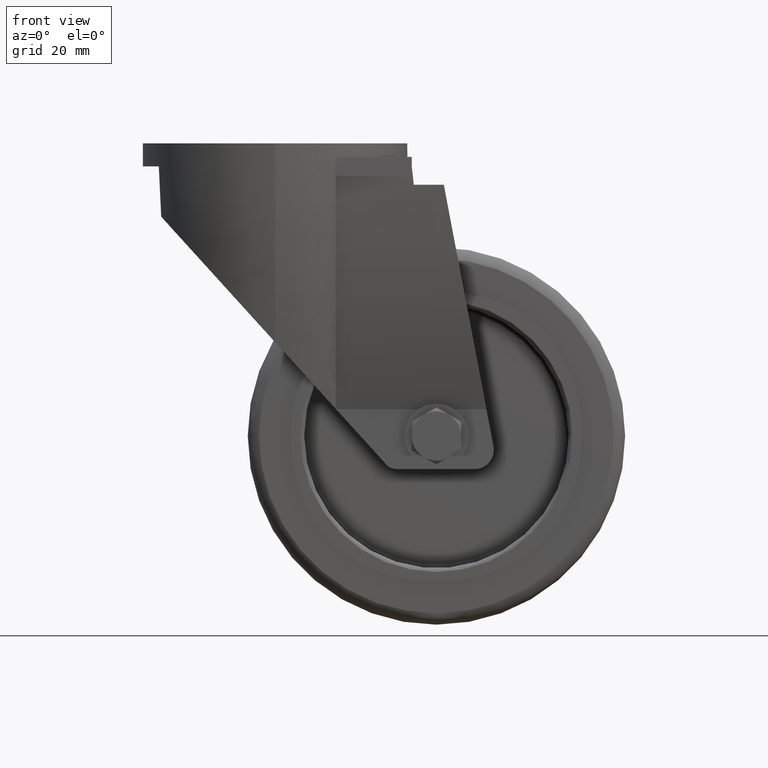
[diagram: clean part render]
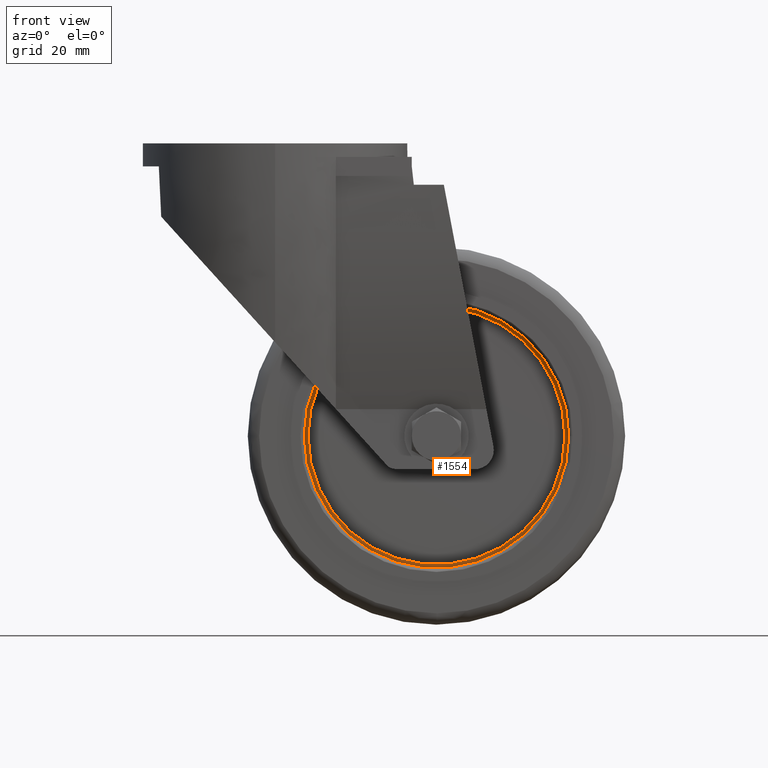
[diagram: same view with one face highlighted and labeled with its STEP entity id]
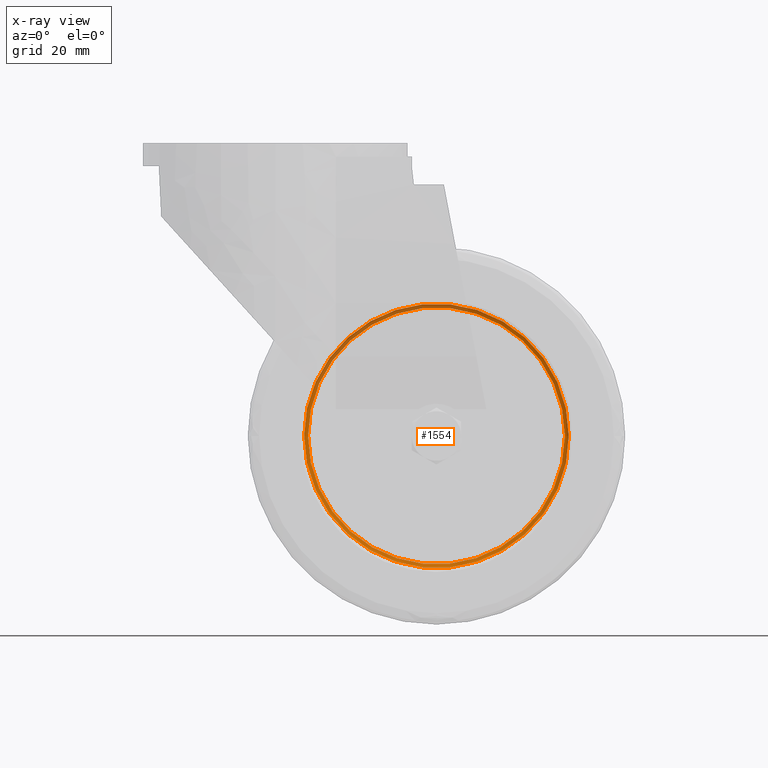
[diagram: x-ray of the same camera — body ghosted, the highlighted face saturated]
A machine part, front view. The second image highlights one B-rep face of the part: STEP entity #1554.
The next image is the same camera in x-ray: the body ghosted, the highlighted face saturated — about 23% of this face is hidden behind the body in this view.
In plain terms, the highlighted face is a freeform B-spline surface patch.
Its self-contained STEP definition (entity closure, byte-faithful):
#1210=CARTESIAN_POINT('',(77.331678570531210,-2.000000000000171,-80.075077357231748));
#1211=VERTEX_POINT('',#1210);
#1218=CARTESIAN_POINT('',(7.668300649130061,-2.000000000000245,-80.075077357231748));
#1219=VERTEX_POINT('',#1218);
#1220=CARTESIAN_POINT('',(42.499989609830635,-2.000000000000227,-80.075077357231748));
#1221=DIRECTION('',(5.163578E-016,-1.0,6.123234E-017));
#1222=DIRECTION('',(1.0,5.163578E-016,-3.161779E-032));
#1223=AXIS2_PLACEMENT_3D('',#1220,#1221,#1222);
#1224=CIRCLE('',#1223,34.831688960700575);
#1225=EDGE_CURVE('',#1219,#1211,#1224,.T.);
#1227=CARTESIAN_POINT('',(42.499989609830635,-2.000000000000227,-80.075077357231748));
#1228=DIRECTION('',(5.163578E-016,-1.0,6.123234E-017));
#1229=DIRECTION('',(1.0,5.163578E-016,-3.161779E-032));
#1230=AXIS2_PLACEMENT_3D('',#1227,#1228,#1229);
#1231=CIRCLE('',#1230,34.831688960700575);
#1232=EDGE_CURVE('',#1211,#1219,#1231,.T.);
#1245=CARTESIAN_POINT('',(76.331678570531210,-1.000000000000227,-80.075077357231748));
#1246=VERTEX_POINT('',#1245);
#1247=CARTESIAN_POINT('',(8.668300649130060,-1.000000000000245,-80.075077357231748));
#1248=VERTEX_POINT('',#1247);
#1249=CARTESIAN_POINT('',(42.499989609830635,-1.000000000000227,-80.075077357231748));
#1250=DIRECTION('',(5.227326E-016,-1.0,6.123234E-017));
#1251=DIRECTION('',(1.0,5.227326E-016,-3.200814E-032));
#1252=AXIS2_PLACEMENT_3D('',#1249,#1250,#1251);
#1253=CIRCLE('',#1252,33.831688960700575);
#1254=EDGE_CURVE('',#1246,#1248,#1253,.T.);
#1256=CARTESIAN_POINT('',(42.499989609830635,-1.000000000000227,-80.075077357231748));
#1257=DIRECTION('',(5.227326E-016,-1.0,6.123234E-017));
#1258=DIRECTION('',(1.0,5.227326E-016,-3.200814E-032));
#1259=AXIS2_PLACEMENT_3D('',#1256,#1257,#1258);
#1260=CIRCLE('',#1259,33.831688960700575);
#1261=EDGE_CURVE('',#1248,#1246,#1260,.T.);
#1266=CARTESIAN_POINT('',(76.331678570531210,-1.000000000000210,-80.075077357231748));
#1267=CARTESIAN_POINT('',(76.461738785208624,-1.000000000000210,-80.075077357231748));
#1268=CARTESIAN_POINT('',(76.724706387874463,-1.052038776115991,-80.075077357231720));
#1269=CARTESIAN_POINT('',(77.057091482004182,-1.274587088527260,-80.075077357231777));
#1270=CARTESIAN_POINT('',(77.279639794415431,-1.606972182656934,-80.075077357231734));
#1271=CARTESIAN_POINT('',(77.331678570531210,-1.869939785322791,-80.075077357231748));
#1272=CARTESIAN_POINT('',(77.331678570531210,-2.000000000000210,-80.075077357231748));
#1273=CARTESIAN_POINT('',(76.331678570531210,-1.000000000000209,-77.864353754267057));
#1274=CARTESIAN_POINT('',(76.461738785208624,-1.000000000000209,-77.855855000724844));
#1275=CARTESIAN_POINT('',(76.724706387874463,-1.052038776115991,-77.838671445783064));
#1276=CARTESIAN_POINT('',(77.057091482004182,-1.274587088527260,-77.816951821506606));
#1277=CARTESIAN_POINT('',(77.279639794415431,-1.606972182656934,-77.802409455394766));
#1278=CARTESIAN_POINT('',(77.331678570531210,-1.869939785322791,-77.799008994047355));
#1279=CARTESIAN_POINT('',(77.331678570531210,-2.000000000000210,-77.799008994047355));
#1280=CARTESIAN_POINT('',(75.895492959040098,-1.000000000000209,-73.430646755535420));
#1281=CARTESIAN_POINT('',(76.023876331797638,-1.000000000000210,-73.405103364205786));
#1282=CARTESIAN_POINT('',(76.283453542552962,-1.052038776115993,-73.353457406227179));
#1283=CARTESIAN_POINT('',(76.611553258092712,-1.274587088527264,-73.288178085010145));
#1284=CARTESIAN_POINT('',(76.831232296911196,-1.606972182656937,-73.244470340502943));
#1285=CARTESIAN_POINT('',(76.882600146860412,-1.869939785322790,-73.234250098856094));
#1286=CARTESIAN_POINT('',(76.882600146860412,-2.000000000000208,-73.234250098856094));
#1287=CARTESIAN_POINT('',(73.957929709560034,-1.000000000000210,-67.045259305460434));
#1288=CARTESIAN_POINT('',(74.078864447622735,-1.000000000000209,-66.995168370450074));
#1289=CARTESIAN_POINT('',(74.323381329485812,-1.052038776115989,-66.893889950084301));
#1290=CARTESIAN_POINT('',(74.632445130389186,-1.274587088527256,-66.765876320476224));
#1291=CARTESIAN_POINT('',(74.839378679856964,-1.606972182656931,-66.680164843824343));
#1292=CARTESIAN_POINT('',(74.887766234608279,-1.869939785322790,-66.660122812070867));
#1293=CARTESIAN_POINT('',(74.887766234608279,-2.000000000000211,-66.660122812070867));
#1294=CARTESIAN_POINT('',(70.811155748179317,-1.000000000000211,-61.157819040879247));
#1295=CARTESIAN_POINT('',(70.919993245178006,-1.000000000000212,-61.085094836048938));
#1296=CARTESIAN_POINT('',(71.140050821869636,-1.052038776115995,-60.938054406756692));
#1297=CARTESIAN_POINT('',(71.418198614985926,-1.274587088527266,-60.752198634274940));
#1298=CARTESIAN_POINT('',(71.604432363286321,-1.606972182656939,-60.627758973025877));
#1299=CARTESIAN_POINT('',(71.647979655233868,-1.869939785322794,-60.598661076926369));
#1300=CARTESIAN_POINT('',(71.647979655233868,-2.000000000000211,-60.598661076926369));
#1301=CARTESIAN_POINT('',(66.577512778870542,-1.000000000000213,-55.998652758354297));
#1302=CARTESIAN_POINT('',(66.670074750455939,-1.000000000000213,-55.906095010036381));
#1303=CARTESIAN_POINT('',(66.857224985646610,-1.052038776115994,-55.718953313832912));
#1304=CARTESIAN_POINT('',(67.093778644384997,-1.274587088527262,-55.482410448181184));
#1305=CARTESIAN_POINT('',(67.252163055950604,-1.606972182656937,-55.324033263122445));
#1306=CARTESIAN_POINT('',(67.289198299419297,-1.869939785322793,-55.286999709437787));
#1307=CARTESIAN_POINT('',(67.289198299419297,-2.000000000000213,-55.286999709437787));
#1308=CARTESIAN_POINT('',(62.273906765019326,-1.000000000000215,-52.467535604192634));
#1309=CARTESIAN_POINT('',(62.349924250082040,-1.000000000000217,-52.361403072314403));
#1310=CARTESIAN_POINT('',(62.503623333673595,-1.052038776116001,-52.146814640778302));
#1311=CARTESIAN_POINT('',(62.697895494385833,-1.274587088527273,-51.875579723274456));
#1312=CARTESIAN_POINT('',(62.827970345149488,-1.606972182656945,-51.693974488191408));
#1313=CARTESIAN_POINT('',(62.858385925316568,-1.869939785322799,-51.651509487816703));
#1314=CARTESIAN_POINT('',(62.858385925316568,-2.000000000000215,-51.651509487816703));
#1315=CARTESIAN_POINT('',(58.473733178391250,-1.000000000000217,-50.190337371337236));
#1316=CARTESIAN_POINT('',(58.535141537877621,-1.000000000000217,-50.075450535428459));
#1317=CARTESIAN_POINT('',(58.659302559123205,-1.052038776115997,-49.843161853668839));
#1318=CARTESIAN_POINT('',(58.816239278002563,-1.274587088527264,-49.549554220754288));
#1319=CARTESIAN_POINT('',(58.921316197993264,-1.606972182656939,-49.352969342640876));
#1320=CARTESIAN_POINT('',(58.945886477835352,-1.869939785322798,-49.307001631859102));
#1321=CARTESIAN_POINT('',(58.945886477835352,-2.000000000000218,-49.307001631859102));
#1322=CARTESIAN_POINT('',(54.468916587374977,-1.000000000000220,-48.295741230194125));
#1323=CARTESIAN_POINT('',(54.514929105814879,-1.000000000000220,-48.173570939382188));
#1324=CARTESIAN_POINT('',(54.607961411633930,-1.052038776116002,-47.926555904296322));
#1325=CARTESIAN_POINT('',(54.725552139211381,-1.274587088527273,-47.614334494297204));
#1326=CARTESIAN_POINT('',(54.804284965802459,-1.606972182656946,-47.405286768869168));
#1327=CARTESIAN_POINT('',(54.822695170272425,-1.869939785322801,-47.356404853463040));
#1328=CARTESIAN_POINT('',(54.822695170272425,-2.000000000000219,-47.356404853463040));
#1329=CARTESIAN_POINT('',(49.142862432135743,-1.000000000000221,-46.679100625331856));
#1330=CARTESIAN_POINT('',(49.168399834845580,-1.000000000000221,-46.550715432734499));
#1331=CARTESIAN_POINT('',(49.220033684486530,-1.052038776116001,-46.291134542461080));
#1332=CARTESIAN_POINT('',(49.285297701039148,-1.274587088527270,-45.963030176093810));
#1333=CARTESIAN_POINT('',(49.328995198314047,-1.606972182656944,-45.743348023315555));
#1334=CARTESIAN_POINT('',(49.339213043836551,-1.869939785322802,-45.691979445224845));
#1335=CARTESIAN_POINT('',(49.339213043836551,-2.000000000000222,-45.691979445224845));
#1336=CARTESIAN_POINT('',(43.603568212883616,-1.000000000000225,-46.134489471185340));
#1337=CARTESIAN_POINT('',(43.607810734449515,-1.000000000000225,-46.004010612980387));
#1338=CARTESIAN_POINT('',(43.616388651441326,-1.052038776116007,-45.740196558653025));
#1339=CARTESIAN_POINT('',(43.627230944247991,-1.274587088527276,-45.406741568793592));
#1340=CARTESIAN_POINT('',(43.634490397242118,-1.606972182656949,-45.183476908106357));
#1341=CARTESIAN_POINT('',(43.636187885059456,-1.869939785322806,-45.131270627293958));
#1342=CARTESIAN_POINT('',(43.636187885059456,-2.000000000000224,-45.131270627293958));
#1343=CARTESIAN_POINT('',(39.178570025943586,-1.000000000000227,-46.352290053283006));
#1344=CARTESIAN_POINT('',(39.165801389278251,-1.000000000000227,-46.222648492633546));
#1345=CARTESIAN_POINT('',(39.139984595253061,-1.052038776116008,-45.960527362859885));
#1346=CARTESIAN_POINT('',(39.107352752299057,-1.274587088527276,-45.629212191295210));
#1347=CARTESIAN_POINT('',(39.085504114353078,-1.606972182656950,-45.407380245127321));
#1348=CARTESIAN_POINT('',(39.080395217474958,-1.869939785322808,-45.355508977909516));
#1349=CARTESIAN_POINT('',(39.080395217474958,-2.000000000000227,-45.355508977909516));
#1350=CARTESIAN_POINT('',(34.796219573512715,-1.000000000000229,-47.001887801242788));
#1351=CARTESIAN_POINT('',(34.766603730629058,-1.000000000000229,-46.874743509430580));
#1352=CARTESIAN_POINT('',(34.706723718717953,-1.052038776116011,-46.617671585526480));
#1353=CARTESIAN_POINT('',(34.631036739813382,-1.274587088527281,-46.292738495827493));
#1354=CARTESIAN_POINT('',(34.580360552089523,-1.606972182656954,-46.075179670127319));
#1355=CARTESIAN_POINT('',(34.568510869839471,-1.869939785322811,-46.024307592509857));
#1356=CARTESIAN_POINT('',(34.568510869839471,-2.000000000000231,-46.024307592509857));
#1357=CARTESIAN_POINT('',(29.468919958241877,-1.000000000000232,-48.617262374996621));
#1358=CARTESIAN_POINT('',(29.418824211667388,-1.000000000000233,-48.496328117927035));
#1359=CARTESIAN_POINT('',(29.317536062842450,-1.052038776116014,-48.251812208579580));
#1360=CARTESIAN_POINT('',(29.189510136682394,-1.274587088527284,-47.942749636914073));
#1361=CARTESIAN_POINT('',(29.103790426878831,-1.606972182656958,-47.735816910481873));
#1362=CARTESIAN_POINT('',(29.083746469956207,-1.869939785322814,-47.687429548182195));
#1363=CARTESIAN_POINT('',(29.083746469956207,-2.000000000000232,-47.687429548182195));
#1364=CARTESIAN_POINT('',(23.583158761580727,-1.000000000000236,-51.763704430534041));
#1365=CARTESIAN_POINT('',(23.510436200079361,-1.000000000000235,-51.654866138572430));
#1366=CARTESIAN_POINT('',(23.363399093419446,-1.052038776116016,-51.434806954552378));
#1367=CARTESIAN_POINT('',(23.177547520669574,-1.274587088527284,-51.156657129809290));
#1368=CARTESIAN_POINT('',(23.053110671349465,-1.606972182656959,-50.970422021233986));
#1369=CARTESIAN_POINT('',(23.024013432767148,-1.869939785322817,-50.926874411211486));
#1370=CARTESIAN_POINT('',(23.024013432767148,-2.000000000000237,-50.926874411211486));
#1371=CARTESIAN_POINT('',(18.423106738360293,-1.000000000000239,-55.998256224093680));
#1372=CARTESIAN_POINT('',(18.330547228290783,-1.000000000000239,-55.905696951366778));
#1373=CARTESIAN_POINT('',(18.143401970017333,-1.052038776116020,-55.718552172974213));
#1374=CARTESIAN_POINT('',(17.906854601989721,-1.274587088527291,-55.482005411505199));
#1375=CARTESIAN_POINT('',(17.748474402366995,-1.606972182656963,-55.323625618003511));
#1376=CARTESIAN_POINT('',(17.711440143782692,-1.869939785322820,-55.286591454383071));
#1377=CARTESIAN_POINT('',(17.711440143782692,-2.000000000000238,-55.286591454383071));
#1378=CARTESIAN_POINT('',(14.188651845329293,-1.000000000000241,-61.158034717849077));
#1379=CARTESIAN_POINT('',(14.079813688542819,-1.000000000000241,-61.085311342152451));
#1380=CARTESIAN_POINT('',(13.859754777832137,-1.052038776116023,-60.938272589278299));
#1381=CARTESIAN_POINT('',(13.581605298545966,-1.274587088527292,-60.752418935751081));
#1382=CARTESIAN_POINT('',(13.395370421271162,-1.606972182656966,-60.627980693247167));
#1383=CARTESIAN_POINT('',(13.351822865333993,-1.869939785322823,-60.598883128894798));
#1384=CARTESIAN_POINT('',(13.351822865333993,-2.000000000000242,-60.598883128894798));
#1385=CARTESIAN_POINT('',(11.042095717142319,-1.000000000000243,-67.044793131841743));
#1386=CARTESIAN_POINT('',(10.921161156714810,-1.000000000000243,-66.994700404705640));
#1387=CARTESIAN_POINT('',(10.676644634010710,-1.052038776116023,-66.893418360856586));
#1388=CARTESIAN_POINT('',(10.367581287076179,-1.274587088527292,-66.765400151247675));
#1389=CARTESIAN_POINT('',(10.160648041562977,-1.606972182656966,-66.679685608058080));
#1390=CARTESIAN_POINT('',(10.112260557885850,-1.869939785322824,-66.659642859251846));
#1391=CARTESIAN_POINT('',(10.112260557885850,-2.000000000000243,-66.659642859251846));
#1392=CARTESIAN_POINT('',(9.104473058609393,-1.000000000000244,-73.432295773040394));
#1393=CARTESIAN_POINT('',(8.976089635098951,-1.000000000000244,-73.406758721080067));
#1394=CARTESIAN_POINT('',(8.716512321726743,-1.052038776116025,-73.355125580616459));
#1395=CARTESIAN_POINT('',(8.388412476481639,-1.274587088527295,-73.289862460448049));
#1396=CARTESIAN_POINT('',(8.168733350818998,-1.606972182656969,-73.246165563346750));
#1397=CARTESIAN_POINT('',(8.117365480562844,-1.869939785322826,-73.235947858163669));
#1398=CARTESIAN_POINT('',(8.117365480562844,-2.000000000000245,-73.235947858163669));
#1399=CARTESIAN_POINT('',(8.450214444390394,-1.000000000000245,-80.075077357231748));
#1400=CARTESIAN_POINT('',(8.319315834129483,-1.000000000000245,-80.075077357231734));
#1401=CARTESIAN_POINT('',(8.054653086816796,-1.052038776116026,-80.075077357231720));
#1402=CARTESIAN_POINT('',(7.720125368244855,-1.274587088527297,-80.075077357231748));
#1403=CARTESIAN_POINT('',(7.496142462459257,-1.606972182656969,-80.075077357231720));
#1404=CARTESIAN_POINT('',(7.443768233413667,-1.869939785322827,-80.075077357231748));
#1405=CARTESIAN_POINT('',(7.443768233413667,-2.000000000000245,-80.075077357231748));
#1406=CARTESIAN_POINT('',(9.104473058609395,-1.000000000000245,-86.717858941423103));
#1407=CARTESIAN_POINT('',(8.976089635098955,-1.000000000000245,-86.743395993383444));
#1408=CARTESIAN_POINT('',(8.716512321726750,-1.052038776116027,-86.795029133846981));
#1409=CARTESIAN_POINT('',(8.388412476481642,-1.274587088527295,-86.860292254015548));
#1410=CARTESIAN_POINT('',(8.168733350819002,-1.606972182656970,-86.903989151116733));
#1411=CARTESIAN_POINT('',(8.117365480562846,-1.869939785322826,-86.914206856299828));
#1412=CARTESIAN_POINT('',(8.117365480562846,-2.000000000000247,-86.914206856299828));
#1413=CARTESIAN_POINT('',(11.042095717142313,-1.000000000000245,-93.105361582621754));
#1414=CARTESIAN_POINT('',(10.921161156714804,-1.000000000000245,-93.155454309757857));
#1415=CARTESIAN_POINT('',(10.676644634010700,-1.052038776116025,-93.256736353606897));
#1416=CARTESIAN_POINT('',(10.367581287076170,-1.274587088527295,-93.384754563215751));
#1417=CARTESIAN_POINT('',(10.160648041562965,-1.606972182656968,-93.470469106405375));
#1418=CARTESIAN_POINT('',(10.112260557885843,-1.869939785322826,-93.490511855211651));
#1419=CARTESIAN_POINT('',(10.112260557885843,-2.000000000000245,-93.490511855211651));
#1420=CARTESIAN_POINT('',(14.188651845329293,-1.000000000000243,-98.992119996614406));
#1421=CARTESIAN_POINT('',(14.079813688542821,-1.000000000000244,-99.064843372311032));
#1422=CARTESIAN_POINT('',(13.859754777832130,-1.052038776116027,-99.211882125185113));
#1423=CARTESIAN_POINT('',(13.581605298545970,-1.274587088527297,-99.397735778712516));
#1424=CARTESIAN_POINT('',(13.395370421271164,-1.606972182656971,-99.522174021216330));
#1425=CARTESIAN_POINT('',(13.351822865333993,-1.869939785322826,-99.551271585568671));
#1426=CARTESIAN_POINT('',(13.351822865333993,-2.000000000000243,-99.551271585568671));
#1427=CARTESIAN_POINT('',(18.423106738360264,-1.000000000000242,-104.151898490369800));
#1428=CARTESIAN_POINT('',(18.330547228290751,-1.000000000000241,-104.244457763096700));
#1429=CARTESIAN_POINT('',(18.143401970017301,-1.052038776116021,-104.431602541489280));
#1430=CARTESIAN_POINT('',(17.906854601989703,-1.274587088527289,-104.668149302958260));
#1431=CARTESIAN_POINT('',(17.748474402366966,-1.606972182656964,-104.826529096459940));
#1432=CARTESIAN_POINT('',(17.711440143782664,-1.869939785322822,-104.863563260080430));
#1433=CARTESIAN_POINT('',(17.711440143782664,-2.000000000000242,-104.863563260080430));
#1434=CARTESIAN_POINT('',(23.583158761580730,-1.000000000000239,-108.386450283929430));
#1435=CARTESIAN_POINT('',(23.510436200079361,-1.000000000000239,-108.495288575891040));
#1436=CARTESIAN_POINT('',(23.363399093419439,-1.052038776116022,-108.715347759911070));
#1437=CARTESIAN_POINT('',(23.177547520669570,-1.274587088527292,-108.993497584654240));
#1438=CARTESIAN_POINT('',(23.053110671349469,-1.606972182656965,-109.179732693229480));
#1439=CARTESIAN_POINT('',(23.024013432767152,-1.869939785322820,-109.223280303252000));
#1440=CARTESIAN_POINT('',(23.024013432767152,-2.000000000000239,-109.223280303252000));
#1441=CARTESIAN_POINT('',(29.468919958241855,-1.000000000000236,-111.532892339466870));
#1442=CARTESIAN_POINT('',(29.418824211667371,-1.000000000000237,-111.653826596536450));
#1443=CARTESIAN_POINT('',(29.317536062842439,-1.052038776116019,-111.898342505883850));
#1444=CARTESIAN_POINT('',(29.189510136682383,-1.274587088527288,-112.207405077549450));
#1445=CARTESIAN_POINT('',(29.103790426878813,-1.606972182656963,-112.414337803981540));
#1446=CARTESIAN_POINT('',(29.083746469956189,-1.869939785322818,-112.462725166281290));
#1447=CARTESIAN_POINT('',(29.083746469956189,-2.000000000000236,-112.462725166281290));
#1448=CARTESIAN_POINT('',(34.796219573512730,-1.000000000000234,-113.148266913220710));
#1449=CARTESIAN_POINT('',(34.766603730629065,-1.000000000000235,-113.275411205032940));
#1450=CARTESIAN_POINT('',(34.706723718717939,-1.052038776116020,-113.532483128936920));
#1451=CARTESIAN_POINT('',(34.631036739813389,-1.274587088527292,-113.857416218636060));
#1452=CARTESIAN_POINT('',(34.580360552089545,-1.606972182656963,-114.074975044336180));
#1453=CARTESIAN_POINT('',(34.568510869839479,-1.869939785322818,-114.125847121953630));
#1454=CARTESIAN_POINT('',(34.568510869839479,-2.000000000000234,-114.125847121953630));
#1455=CARTESIAN_POINT('',(39.178570025943550,-1.000000000000231,-113.797864661180510));
#1456=CARTESIAN_POINT('',(39.165801389278208,-1.000000000000230,-113.927506221829940));
#1457=CARTESIAN_POINT('',(39.139984595253040,-1.052038776116008,-114.189627351603690));
#1458=CARTESIAN_POINT('',(39.107352752299029,-1.274587088527275,-114.520942523168270));
#1459=CARTESIAN_POINT('',(39.085504114353007,-1.606972182656951,-114.742774469336170));
#1460=CARTESIAN_POINT('',(39.080395217474916,-1.869939785322810,-114.794645736554000));
#1461=CARTESIAN_POINT('',(39.080395217474916,-2.000000000000231,-114.794645736554000));
#1462=CARTESIAN_POINT('',(43.603568212883637,-1.000000000000229,-114.015665243278140));
#1463=CARTESIAN_POINT('',(43.607810734449536,-1.000000000000229,-114.146144101483100));
#1464=CARTESIAN_POINT('',(43.616388651441348,-1.052038776116012,-114.409958155810330));
#1465=CARTESIAN_POINT('',(43.627230944248005,-1.274587088527284,-114.743413145670000));
#1466=CARTESIAN_POINT('',(43.634490397242160,-1.606972182656954,-114.966677806357140));
#1467=CARTESIAN_POINT('',(43.636187885059485,-1.869939785322813,-115.018884087169520));
#1468=CARTESIAN_POINT('',(43.636187885059485,-2.000000000000229,-115.018884087169520));
#1469=CARTESIAN_POINT('',(49.142862432135779,-1.000000000000226,-113.471054089131630));
#1470=CARTESIAN_POINT('',(49.168399834845630,-1.000000000000227,-113.599439281728960));
#1471=CARTESIAN_POINT('',(49.220033684486573,-1.052038776116009,-113.859020172002370));
#1472=CARTESIAN_POINT('',(49.285297701039184,-1.274587088527279,-114.187124538369630));
#1473=CARTESIAN_POINT('',(49.328995198314097,-1.606972182656953,-114.406806691147840));
#1474=CARTESIAN_POINT('',(49.339213043836580,-1.869939785322807,-114.458175269238610));
#1475=CARTESIAN_POINT('',(49.339213043836580,-2.000000000000226,-114.458175269238610));
#1476=CARTESIAN_POINT('',(54.468916587374899,-1.000000000000223,-111.854413484269390));
#1477=CARTESIAN_POINT('',(54.514929105814815,-1.000000000000223,-111.976583775081350));
#1478=CARTESIAN_POINT('',(54.607961411633873,-1.052038776116003,-112.223598810167120));
#1479=CARTESIAN_POINT('',(54.725552139211324,-1.274587088527271,-112.535820220166370));
#1480=CARTESIAN_POINT('',(54.804284965802410,-1.606972182656946,-112.744867945594380));
#1481=CARTESIAN_POINT('',(54.822695170272368,-1.869939785322804,-112.793749861000490));
#1482=CARTESIAN_POINT('',(54.822695170272368,-2.000000000000223,-112.793749861000490));
#1483=CARTESIAN_POINT('',(58.473733178391271,-1.000000000000221,-109.959817343126280));
#1484=CARTESIAN_POINT('',(58.535141537877635,-1.000000000000220,-110.074704179035050));
#1485=CARTESIAN_POINT('',(58.659302559123198,-1.052038776115999,-110.306992860794650));
#1486=CARTESIAN_POINT('',(58.816239278002591,-1.274587088527268,-110.600600493709240));
#1487=CARTESIAN_POINT('',(58.921316197993249,-1.606972182656942,-110.797185371822610));
#1488=CARTESIAN_POINT('',(58.945886477835352,-1.869939785322801,-110.843153082604430));
#1489=CARTESIAN_POINT('',(58.945886477835352,-2.000000000000221,-110.843153082604430));
#1490=CARTESIAN_POINT('',(62.273906765019326,-1.000000000000219,-107.682619110270860));
#1491=CARTESIAN_POINT('',(62.349924250082047,-1.000000000000219,-107.788751642149070));
#1492=CARTESIAN_POINT('',(62.503623333673588,-1.052038776116001,-108.003340073685140));
#1493=CARTESIAN_POINT('',(62.697895494385804,-1.274587088527268,-108.274574991189160));
#1494=CARTESIAN_POINT('',(62.827970345149517,-1.606972182656942,-108.456180226272100));
#1495=CARTESIAN_POINT('',(62.858385925316583,-1.869939785322800,-108.498645226646790));
#1496=CARTESIAN_POINT('',(62.858385925316583,-2.000000000000219,-108.498645226646790));
#1497=CARTESIAN_POINT('',(66.577512778870528,-1.000000000000216,-104.151501956109230));
#1498=CARTESIAN_POINT('',(66.670074750455910,-1.000000000000218,-104.244059704427140));
#1499=CARTESIAN_POINT('',(66.857224985646610,-1.052038776116002,-104.431201400630630));
#1500=CARTESIAN_POINT('',(67.093778644384940,-1.274587088527274,-104.667744266282340));
#1501=CARTESIAN_POINT('',(67.252163055950604,-1.606972182656947,-104.826121451341040));
#1502=CARTESIAN_POINT('',(67.289198299419255,-1.869939785322800,-104.863155005025720));
#1503=CARTESIAN_POINT('',(67.289198299419255,-2.000000000000216,-104.863155005025720));
#1504=CARTESIAN_POINT('',(70.811155748179289,-1.000000000000214,-98.992335673584236));
#1505=CARTESIAN_POINT('',(70.919993245177992,-1.000000000000215,-99.065059878414559));
#1506=CARTESIAN_POINT('',(71.140050821869622,-1.052038776115997,-99.212100307706734));
#1507=CARTESIAN_POINT('',(71.418198614985954,-1.274587088527266,-99.397956080188564));
#1508=CARTESIAN_POINT('',(71.604432363286321,-1.606972182656940,-99.522395741437620));
#1509=CARTESIAN_POINT('',(71.647979655233883,-1.869939785322795,-99.551493637537106));
#1510=CARTESIAN_POINT('',(71.647979655233883,-2.000000000000213,-99.551493637537106));
#1511=CARTESIAN_POINT('',(73.957929709560062,-1.000000000000212,-93.104895409003063));
#1512=CARTESIAN_POINT('',(74.078864447622749,-1.000000000000212,-93.154986344013395));
#1513=CARTESIAN_POINT('',(74.323381329485812,-1.052038776115993,-93.256264764379182));
#1514=CARTESIAN_POINT('',(74.632445130389158,-1.274587088527263,-93.384278393987302));
#1515=CARTESIAN_POINT('',(74.839378679856935,-1.606972182656937,-93.469989870639125));
#1516=CARTESIAN_POINT('',(74.887766234608236,-1.869939785322792,-93.490031902392644));
#1517=CARTESIAN_POINT('',(74.887766234608236,-2.000000000000211,-93.490031902392644));
#1518=CARTESIAN_POINT('',(75.895492959040126,-1.000000000000211,-86.719507958928091));
#1519=CARTESIAN_POINT('',(76.023876331797680,-1.000000000000211,-86.745051350257739));
#1520=CARTESIAN_POINT('',(76.283453542552991,-1.052038776115994,-86.796697308236276));
#1521=CARTESIAN_POINT('',(76.611553258092755,-1.274587088527264,-86.861976629453437));
#1522=CARTESIAN_POINT('',(76.831232296911224,-1.606972182656938,-86.905684373960582));
#1523=CARTESIAN_POINT('',(76.882600146860483,-1.869939785322792,-86.915904615607431));
#1524=CARTESIAN_POINT('',(76.882600146860483,-2.000000000000210,-86.915904615607431));
#1525=CARTESIAN_POINT('',(76.331678570531210,-1.000000000000210,-82.285800960196454));
#1526=CARTESIAN_POINT('',(76.461738785208624,-1.000000000000210,-82.294299713738667));
#1527=CARTESIAN_POINT('',(76.724706387874463,-1.052038776115991,-82.311483268680405));
#1528=CARTESIAN_POINT('',(77.057091482004182,-1.274587088527260,-82.333202892956962));
#1529=CARTESIAN_POINT('',(77.279639794415431,-1.606972182656934,-82.347745259068731));
#1530=CARTESIAN_POINT('',(77.331678570531210,-1.869939785322792,-82.351145720416156));
#1531=CARTESIAN_POINT('',(77.331678570531210,-2.000000000000210,-82.351145720416156));
#1532=CARTESIAN_POINT('',(76.331678570531210,-1.000000000000210,-80.075077357231763));
#1533=CARTESIAN_POINT('',(76.461738785208624,-1.000000000000210,-80.075077357231763));
#1534=CARTESIAN_POINT('',(76.724706387874463,-1.052038776115991,-80.075077357231748));
#1535=CARTESIAN_POINT('',(77.057091482004182,-1.274587088527260,-80.075077357231777));
#1536=CARTESIAN_POINT('',(77.279639794415431,-1.606972182656934,-80.075077357231748));
#1537=CARTESIAN_POINT('',(77.331678570531210,-1.869939785322791,-80.075077357231763));
#1538=CARTESIAN_POINT('',(77.331678570531210,-2.000000000000210,-80.075077357231763));
#1539=B_SPLINE_SURFACE_WITH_KNOTS('',3,3,((#1266,#1273,#1280,#1287,#1294,#1301,#1308,#1315,#1322,#1329,#1336,#1343,#1350,#1357,#1364,#1371,#1378,#1385,#1392,#1399,#1406,#1413,#1420,#1427,#1434,#1441,#1448,#1455,#1462,#1469,#1476,#1483,#1490,#1497,#1504,#1511,#1518,#1525,#1532),(#1267,#1274,#1281,#1288,#1295,#1302,#1309,#1316,#1323,#1330,#1337,#1344,#1351,#1358,#1365,#1372,#1379,#1386,#1393,#1400,#1407,#1414,#1421,#1428,#1435,#1442,#1449,#1456,#1463,#1470,#1477,#1484,#1491,#1498,#1505,#1512,#1519,#1526,#1533),(#1268,#1275,#1282,#1289,#1296,#1303,#1310,#1317,#1324,#1331,#1338,#1345,#1352,#1359,#1366,#1373,#1380,#1387,#1394,#1401,#1408,#1415,#1422,#1429,#1436,#1443,#1450,#1457,#1464,#1471,#1478,#1485,#1492,#1499,#1506,#1513,#1520,#1527,#1534),(#1269,#1276,#1283,#1290,#1297,#1304,#1311,#1318,#1325,#1332,#1339,#1346,#1353,#1360,#1367,#1374,#1381,#1388,#1395,#1402,#1409,#1416,#1423,#1430,#1437,#1444,#1451,#1458,#1465,#1472,#1479,#1486,#1493,#1500,#1507,#1514,#1521,#1528,#1535),(#1270,#1277,#1284,#1291,#1298,#1305,#1312,#1319,#1326,#1333,#1340,#1347,#1354,#1361,#1368,#1375,#1382,#1389,#1396,#1403,#1410,#1417,#1424,#1431,#1438,#1445,#1452,#1459,#1466,#1473,#1480,#1487,#1494,#1501,#1508,#1515,#1522,#1529,#1536),(#1271,#1278,#1285,#1292,#1299,#1306,#1313,#1320,#1327,#1334,#1341,#1348,#1355,#1362,#1369,#1376,#1383,#1390,#1397,#1404,#1411,#1418,#1425,#1432,#1439,#1446,#1453,#1460,#1467,#1474,#1481,#1488,#1495,#1502,#1509,#1516,#1523,#1530,#1537),(#1272,#1279,#1286,#1293,#1300,#1307,#1314,#1321,#1328,#1335,#1342,#1349,#1356,#1363,#1370,#1377,#1384,#1391,#1398,#1405,#1412,#1419,#1426,#1433,#1440,#1447,#1454,#1461,#1468,#1475,#1482,#1489,#1496,#1503,#1510,#1517,#1524,#1531,#1538)),.UNSPECIFIED.,.F.,.T.,.U.,(4,1,1,1,4),(4,1,1,1,1,1,1,1,1,1,1,1,1,1,1,1,1,1,1,1,1,1,1,1,1,1,1,1,1,1,1,1,1,1,1,1,4),(0.0,0.390180644032254,0.780361288064515,1.170541932096772,1.560722576129028),(0.0,6.750327325056783,13.500654650113574,20.250981975170365,27.001309300227149,33.751636625283943,37.130870723276338,40.510104821268747,47.260432146325535,54.010759471382322,57.389993569374724,60.769227667367112,67.519554992423920,74.269882317480693,81.020209642537495,87.770536967594296,94.520864292651069,101.271191617707860,108.021518942764640,114.771846267821430,121.522173592878220,128.272500917934990,135.022828242991810,141.773155568048570,148.523482893105320,155.273810218162140,158.653044316154590,162.032278414146960,168.782605739203750,175.532933064260590,178.912167162252960,182.291401260245320,189.041728585302140,195.792055910358930,202.542383235415680,209.292710560472500,216.043037885529290),.UNSPECIFIED.);
#1540=ORIENTED_EDGE('',*,*,#1261,.F.);
#1541=ORIENTED_EDGE('',*,*,#1254,.F.);
#1542=CARTESIAN_POINT('',(76.331678570531210,-2.000000000000171,-80.075077357231748));
#1543=DIRECTION('',(0.0,-6.123234E-017,-1.0));
#1544=DIRECTION('',(0.0,1.0,-6.123234E-017));
#1545=AXIS2_PLACEMENT_3D('',#1542,#1543,#1544);
#1546=CIRCLE('',#1545,1.000000000000001);
#1547=EDGE_CURVE('',#1246,#1211,#1546,.T.);
#1548=ORIENTED_EDGE('',*,*,#1547,.T.);
#1549=ORIENTED_EDGE('',*,*,#1232,.T.);
#1550=ORIENTED_EDGE('',*,*,#1225,.T.);
#1551=ORIENTED_EDGE('',*,*,#1547,.F.);
#1552=EDGE_LOOP('',(#1540,#1541,#1548,#1549,#1550,#1551));
#1553=FACE_OUTER_BOUND('',#1552,.T.);
#1554=ADVANCED_FACE('',(#1553),#1539,.T.);